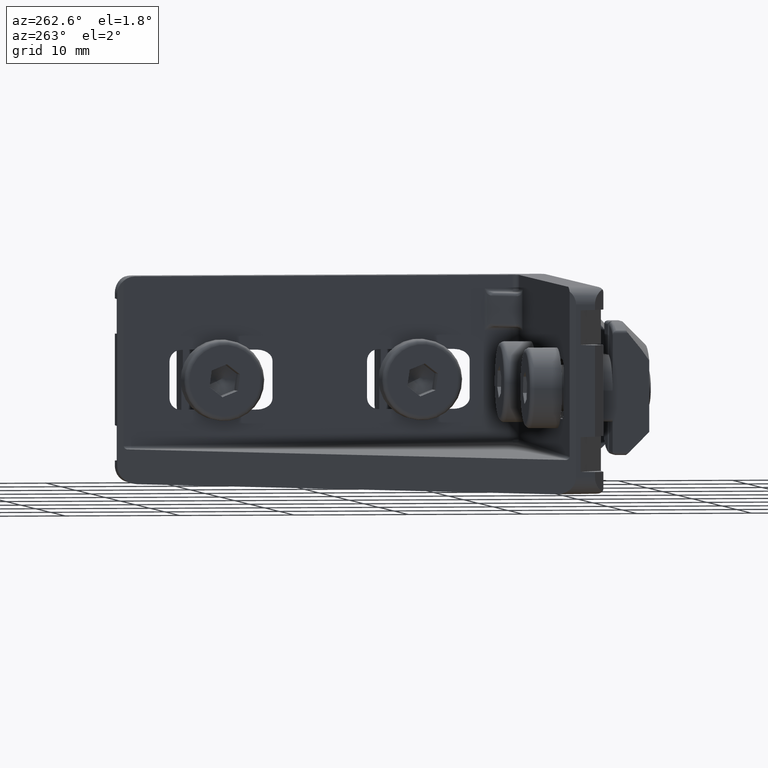
[diagram: clean part render]
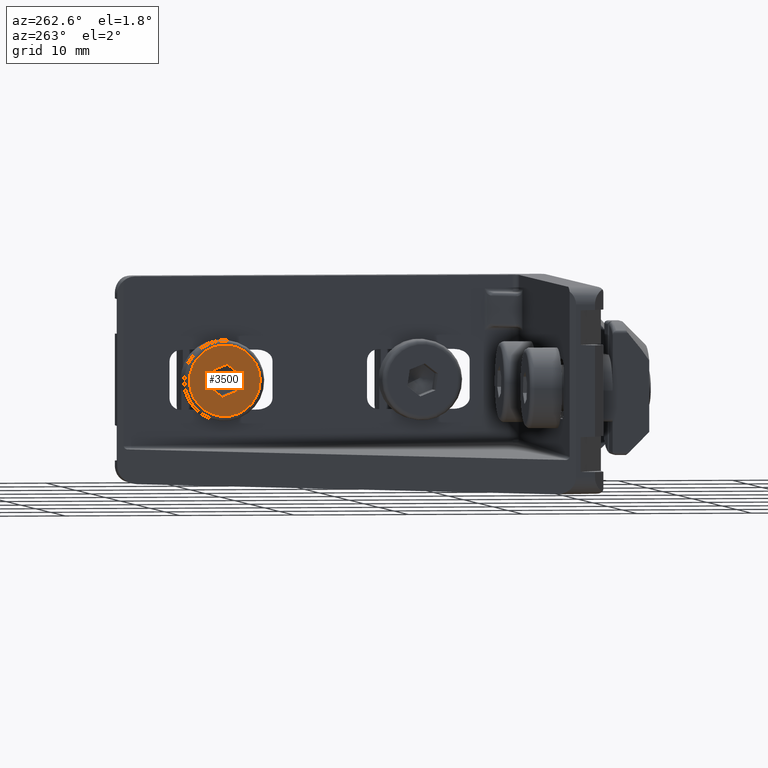
[diagram: same view with one face highlighted and labeled with its STEP entity id]
A machine part, auxiliary view. The second image highlights one B-rep face of the part: STEP entity #3500.
In plain terms, the highlighted planar face has unit normal (-1, 0, -0).
Its self-contained STEP definition (entity closure, byte-faithful):
#71=FACE_BOUND($,#1266,.T.);
#72=FACE_BOUND($,#1267,.T.);
#161=PLANE($,#3802);
#410=LINE($,#6660,#698);
#411=LINE($,#6662,#699);
#412=LINE($,#6664,#700);
#413=LINE($,#6666,#701);
#414=LINE($,#6668,#702);
#415=LINE($,#6669,#703);
#698=VECTOR($,#4617,1.44337567297406);
#699=VECTOR($,#4618,1.44337567297407);
#700=VECTOR($,#4619,1.44337567297407);
#701=VECTOR($,#4620,1.44337567297407);
#702=VECTOR($,#4621,1.44337567297407);
#703=VECTOR($,#4622,1.44337567297406);
#1266=EDGE_LOOP($,(#3091,#3092,#3093,#3094,#3095,#3096));
#1267=EDGE_LOOP($,(#3097));
#1383=CIRCLE($,#3800,3.1);
#1722=VERTEX_POINT($,#6653);
#1724=VERTEX_POINT($,#6658);
#1725=VERTEX_POINT($,#6659);
#1726=VERTEX_POINT($,#6661);
#1727=VERTEX_POINT($,#6663);
#1728=VERTEX_POINT($,#6665);
#1729=VERTEX_POINT($,#6667);
#2190=EDGE_CURVE($,#1722,#1722,#1383,.T.);
#2192=EDGE_CURVE($,#1724,#1725,#410,.T.);
#2193=EDGE_CURVE($,#1725,#1726,#411,.T.);
#2194=EDGE_CURVE($,#1726,#1727,#412,.T.);
#2195=EDGE_CURVE($,#1727,#1728,#413,.T.);
#2196=EDGE_CURVE($,#1728,#1729,#414,.T.);
#2197=EDGE_CURVE($,#1729,#1724,#415,.T.);
#3091=ORIENTED_EDGE($,*,*,#2192,.T.);
#3092=ORIENTED_EDGE($,*,*,#2193,.T.);
#3093=ORIENTED_EDGE($,*,*,#2194,.T.);
#3094=ORIENTED_EDGE($,*,*,#2195,.T.);
#3095=ORIENTED_EDGE($,*,*,#2196,.T.);
#3096=ORIENTED_EDGE($,*,*,#2197,.T.);
#3097=ORIENTED_EDGE($,*,*,#2190,.F.);
#3500=ADVANCED_FACE($,(#71,#72),#161,.T.);
#3800=AXIS2_PLACEMENT_3D($,#6654,#4611,#4612);
#3802=AXIS2_PLACEMENT_3D($,#6657,#4615,#4616);
#4611=DIRECTION('center_axis',(1.,1.57138040785068E-017,0.));
#4612=DIRECTION('ref_axis',(1.57138040785068E-017,-1.,1.22464679914735E-016));
#4615=DIRECTION('center_axis',(-1.,-1.57138040785068E-017,0.));
#4616=DIRECTION('ref_axis',(0.,0.,1.));
#4617=DIRECTION($,(-1.81302353424663E-032,1.15377761183014E-015,1.));
#4618=DIRECTION($,(1.36085535220784E-017,-0.866025403784438,0.500000000000001));
#4619=DIRECTION($,(1.36085535220784E-017,-0.866025403784439,-0.5));
#4620=DIRECTION($,(0.,0.,-1.));
#4621=DIRECTION($,(-1.36085535220784E-017,0.866025403784438,-0.5));
#4622=DIRECTION($,(-1.36085535220784E-017,0.866025403784439,0.5));
#6653=CARTESIAN_POINT('',(-2.8,3.1,0.));
#6654=CARTESIAN_POINT('Origin',(-2.8,-1.69709084047874E-016,0.));
#6657=CARTESIAN_POINT('Origin',(-2.8,2.47168783648703,0.));
#6658=CARTESIAN_POINT('',(-2.8,1.25,-0.721687836487033));
#6659=CARTESIAN_POINT('',(-2.8,1.25,0.721687836487031));
#6660=CARTESIAN_POINT($,(-2.8,1.25,0.360843918243515));
#6661=CARTESIAN_POINT('',(-2.8,7.053455739611E-018,1.44337567297407));
#6662=CARTESIAN_POINT($,(-2.8,0.3125,1.26295371385231));
#6663=CARTESIAN_POINT('',(-2.8,-1.25,0.721687836487033));
#6664=CARTESIAN_POINT($,(-2.8,-0.937500000000001,0.902109795608791));
#6665=CARTESIAN_POINT('',(-2.8,-1.25,-0.721687836487032));
#6666=CARTESIAN_POINT($,(-2.8,-1.25,-0.360843918243516));
#6667=CARTESIAN_POINT('',(-2.8,-3.43781513498227E-016,-1.44337567297407));
#6668=CARTESIAN_POINT($,(-2.8,-0.312500000000001,-1.26295371385231));
#6669=CARTESIAN_POINT($,(-2.8,0.9375,-0.902109795608791));